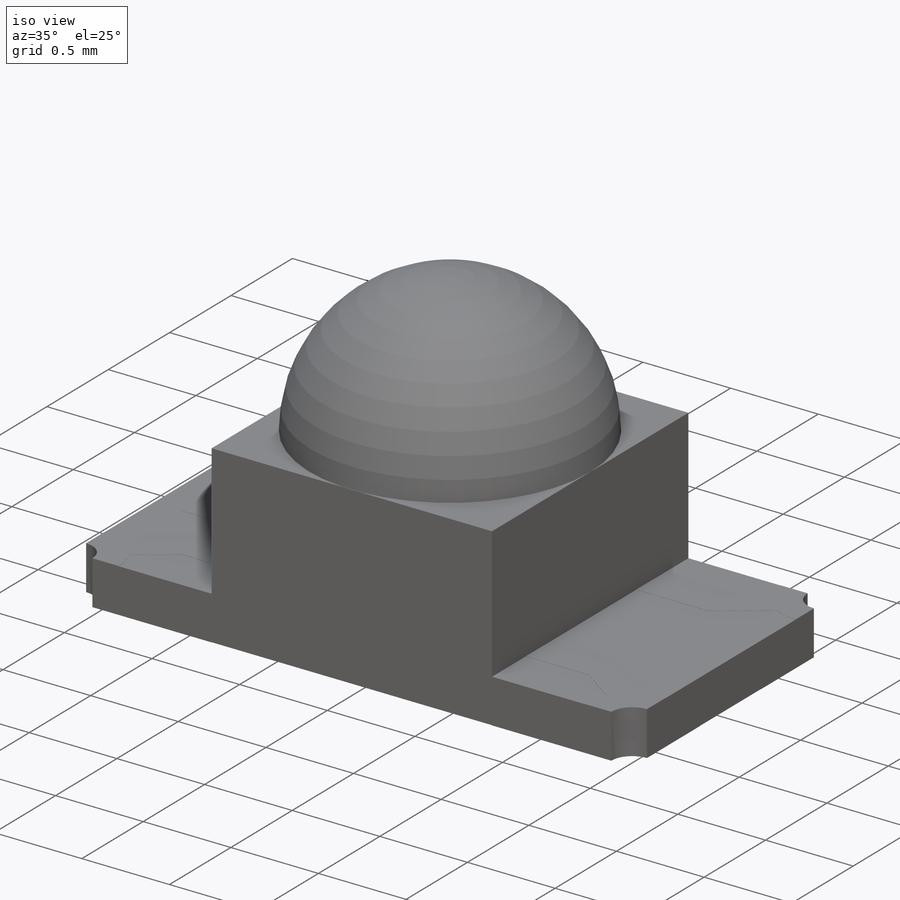
[diagram: iso view]
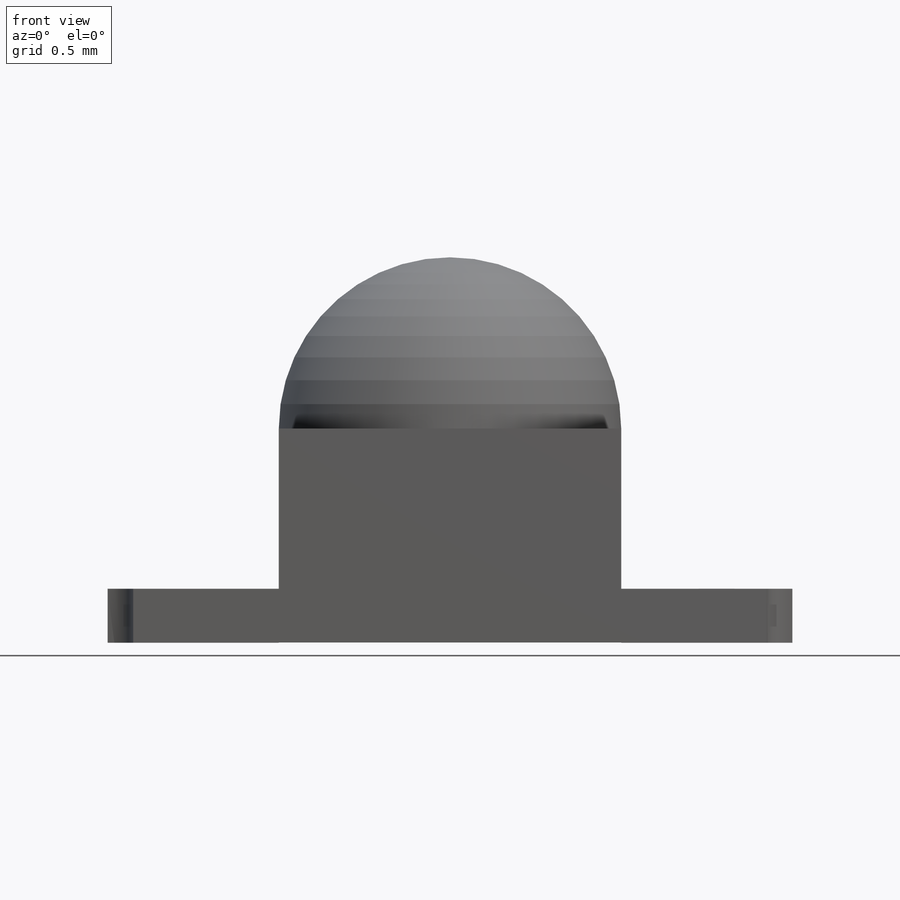
[diagram: front view]
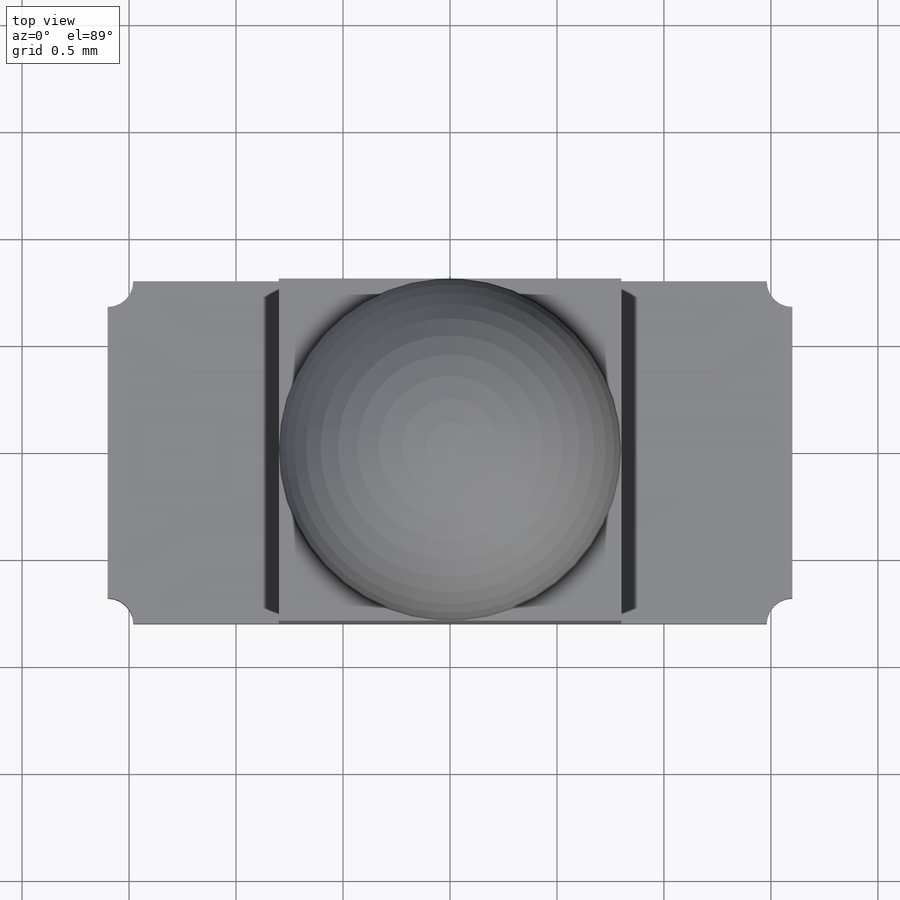
[diagram: top view]
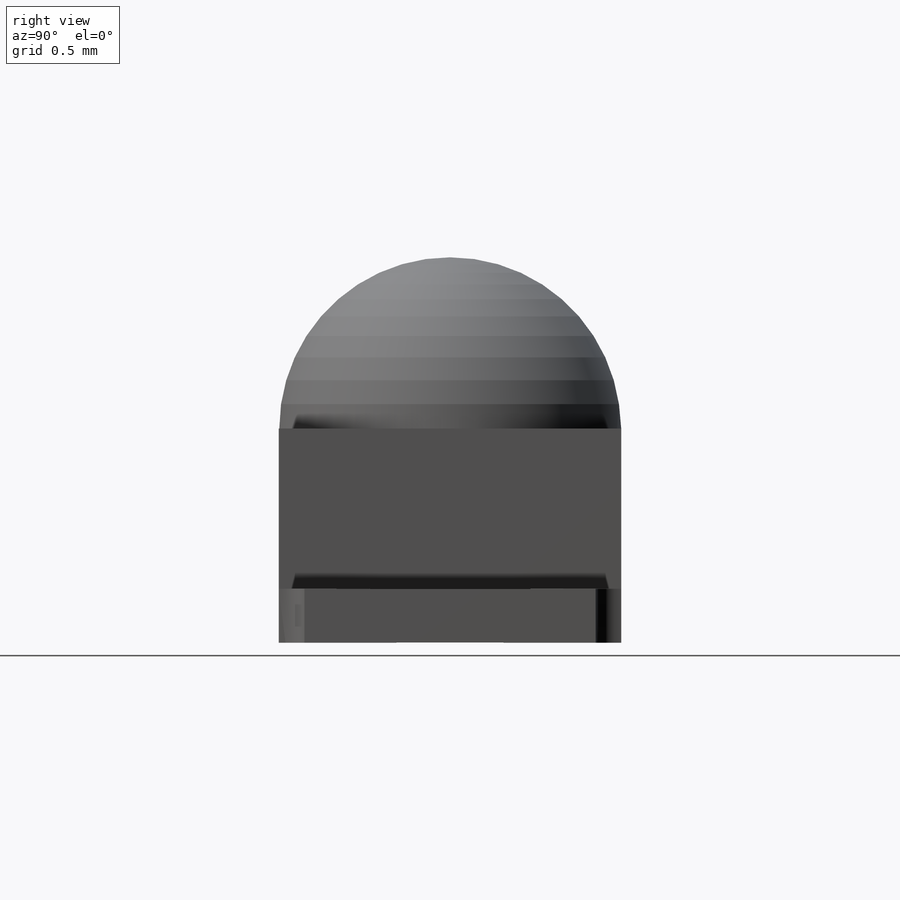
[diagram: right view]
SOLIDWORKS PART (.sldprt)
format: sldprt  version: not decoded by parser v0  size: 398,336 bytes
history: native  units: mm
features: sketch x8, extrude x6, material x1, revolve x1, cut_extrude x1 (+11 scaffold rows collapsed)
feature tree (28):
  scaffold x11  (default folders/planes/origin — collapsed)
  material  "Material <not specified>"
  sketch  "Sketch1"  dims[c1.D3=1.6mm c1.D1=0.25mm c1.D2=3.2mm c1.D4=0.75mm c1.D5=0.6mm c1.D6=0.5mm c1.D7=0.03mm c1.D8=0.03mm c1.D9=0.03mm c1.D10=1.6mm c2.D5=1.8mm]
  extrude  "Extrude1"  Depth=1.6mm
  revolve  "Revolve1"  [1 undecoded]
  sketch  "Sketch1<3>"  dims[D1=360.0deg]
  extrude  "Extrude6"  [1 undecoded]
  sketch  "Sketch1<6>"  dims[D1=1.6mm]
  sketch  "Sketch2"  dims[c1.D3=~0.100347mm c1.D6=0.2mm c1.D1=0.3mm c1.D2=0.5mm c2.D3=0.5mm c2.D1=0.8mm c2.D2=0.5mm c3.D3=0.3mm c3.D4=~0.351481mm c3.D5=0.55mm c4.D4=0.3mm c4.D5=0.55mm]
  extrude  "Extrude3"  Depth=0.01mm
  cut_extrude  "Cut-Extrude2"  [1 undecoded]
  sketch  "Sketch2<4>"
  extrude  "Extrude8"  [1 undecoded]
  sketch  "Sketch2<5>"  dims[D1=0.001mm]
  sketch  "Sketch7"  dims[D1=0.15mm D2=0.15mm]
  extrude  "Extrude9"  Depth=0.001mm
  extrude  "Extrude10"  [1 undecoded]
  sketch  "Sketch7<3>"  dims[D1=0.001mm]
decode coverage: 10 of 16 modeling features carry decoded parameters
note: ~ marks probable driven/reference dimensions
note: 5 parameter values undecoded
summary: no parameter record found for 5 features
note: suppression state not decoded; provenance and decode notes live in map.json
